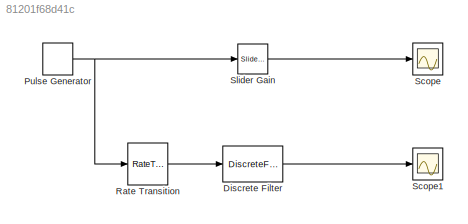
MODEL slx_81201f68d41c
KIND model
BLOCK [DiscreteFilter] Discrete Filter
  InputPortMap = u0
  Ports = [1, 1]
BLOCK [DiscretePulseGenerator] Pulse Generator
  Amplitude = 2
  Period = 1
  Ports = [0, 1]
  PulseType = Time based
  PulseWidth = 5
BLOCK [RateTransition] Rate Transition
  OutPortSampleTime = 0.01
BLOCK [Scope] Scope
  Floating = off
  NumInputPorts = 1
  Ports = [1]
  ShowLegends = off
  YMax = 3
  YMin = 0
BLOCK [Scope] Scope1
  Floating = off
  NumInputPorts = 1
  Ports = [1]
  SaveName = ScopeData1
  ShowLegends = off
BLOCK [Reference] Slider Gain  REF=simulink/Math
Operations/Slider
Gain
  Ports = [1, 1]
  SourceBlock = simulink/Math\nOperations/Slider\nGain
  SourceType = Slider Gain
  gain = 0.62673
  high = 2
  low = 0
LINE Discrete Filter:1 -> Scope1:1
NET Pulse Generator:1 -> Rate Transition:1, Slider Gain:1
LINE Rate Transition:1 -> Discrete Filter:1
LINE Slider Gain:1 -> Scope:1
note: NET lines group one-source signal fan-out (src -> all destinations, sorted); 1:1 wires keep LINE
